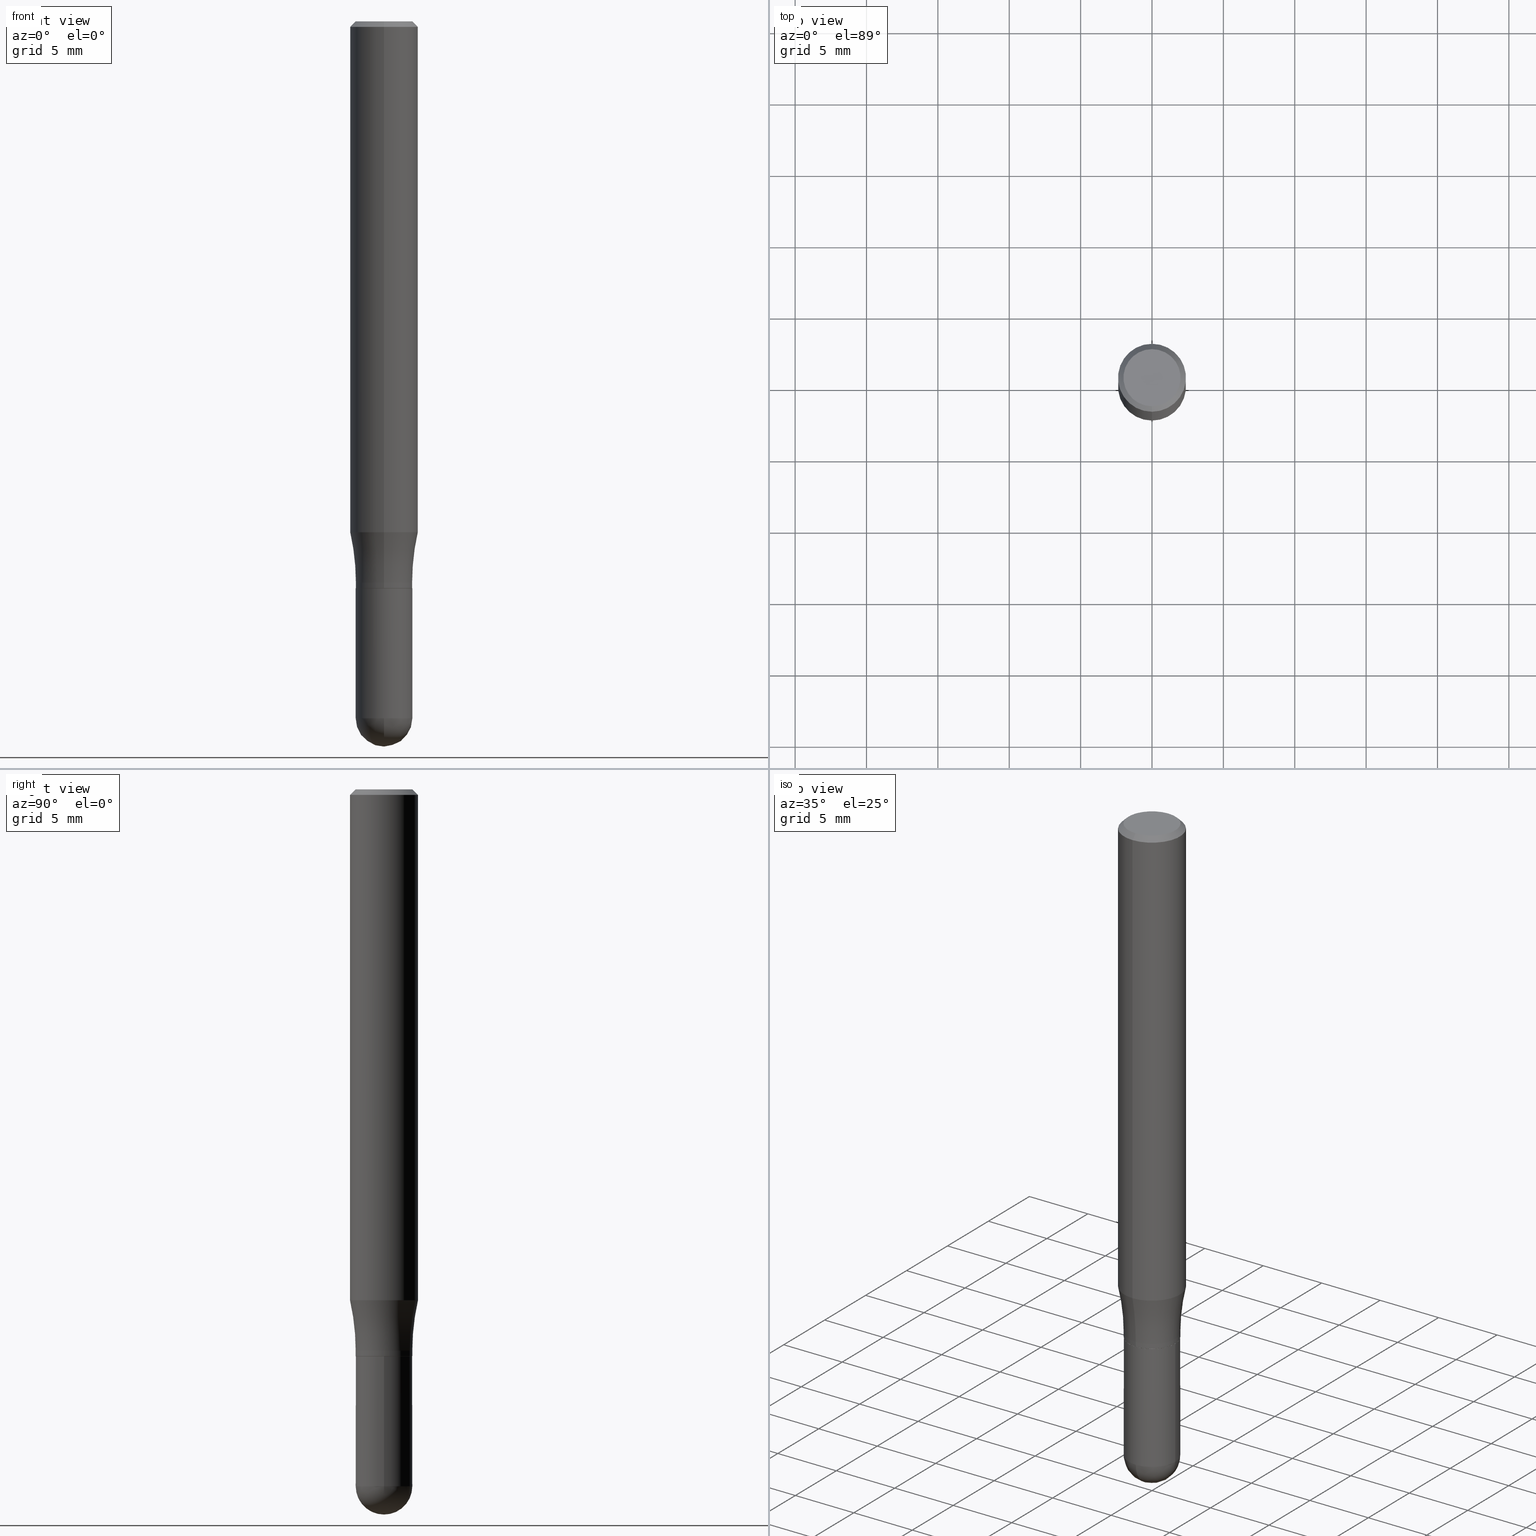
[diagram: canonical four-view strip — front | top / right | iso, engineering-drawing reading convention]
A machine part, canonical four-view strip (front | top / right | iso — engineering-drawing reading convention). The complete STEP part file that produces these views, byte-faithful:
ISO-10303-21;
HEADER;
FILE_DESCRIPTION (( 'STEP AP203' ),
    '1' );
FILE_NAME ('36357.STEP',
    '2024-03-01T12:58:52',
    ( '' ),
    ( '' ),
    'SwSTEP 2.0',
    'SolidWorks 2023',
    '' );
FILE_SCHEMA (( 'CONFIG_CONTROL_DESIGN' ));
ENDSEC;

DATA;
#1 = ORIENTED_EDGE ( 'NONE', *, *, #479, .T. ) ;
#2 = CARTESIAN_POINT ( 'NONE',  ( 4.607751020970784542E-29, -6.842307156538717635E-15, -1.921900000000000164 ) ) ;
#3 = ADVANCED_FACE ( 'NONE', ( #472 ), #434, .T. ) ;
#4 = DIRECTION ( 'NONE',  ( -6.982962677686265133E-15, -1.000000000000000000, 3.520422672247767279E-15 ) ) ;
#5 = PERSON_AND_ORGANIZATION ( #169, #491 ) ;
#6 = FACE_OUTER_BOUND ( 'NONE', #437, .T. ) ;
#7 = CC_DESIGN_PERSON_AND_ORGANIZATION_ASSIGNMENT ( #474, #201, ( #209 ) ) ;
#8 = AXIS2_PLACEMENT_3D ( 'NONE', #226, #345, #483 ) ;
#9 = SPHERICAL_SURFACE ( 'NONE', #490, 0.07809999999999985010 ) ;
#10 = UNCERTAINTY_MEASURE_WITH_UNIT (LENGTH_MEASURE( 1.000000000000000082E-05 ), #293, 'distance_accuracy_value', 'NONE');
#11 = DIRECTION ( 'NONE',  ( -2.448354798421115077E-29, 3.487348433700747315E-15, 1.000000000000000000 ) ) ;
#12 = DIRECTION ( 'NONE',  ( -6.982962677686265922E-15, -1.000000000000000000, 3.487348433700747709E-15 ) ) ;
#13 = FACE_OUTER_BOUND ( 'NONE', #123, .T. ) ;
#14 = AXIS2_PLACEMENT_3D ( 'NONE', #425, #465, #112 ) ;
#15 = CIRCLE ( 'NONE', #342, 0.09374999999999998612 ) ;
#16 = ORIENTED_EDGE ( 'NONE', *, *, #216, .F. ) ;
#17 = LINE ( 'NONE', #457, #486 ) ;
#18 = EDGE_CURVE ( 'NONE', #229, #163, #377, .T. ) ;
#19 = DIRECTION ( 'NONE',  ( 2.448354798421115077E-29, -3.487348433700746920E-15, -1.000000000000000000 ) ) ;
#20 = PRODUCT ( '36357', '36357', '', ( #317 ) ) ;
#21 = CYLINDRICAL_SURFACE ( 'NONE', #419, 0.09374999999999998612 ) ;
#22 = TOROIDAL_SURFACE ( 'NONE', #75, 0.7030999999999998362, 0.6250000000000000000 ) ;
#23 = VECTOR ( 'NONE', #249, 39.37007874015748143 ) ;
#24 = ADVANCED_FACE ( 'NONE', ( #415 ), #251, .T. ) ;
#25 = DIRECTION ( 'NONE',  ( -2.448354798421115077E-29, 3.487348433700747315E-15, 1.000000000000000000 ) ) ;
#26 = DATE_AND_TIME ( #39, #254 ) ;
#27 = DIRECTION ( 'NONE',  ( 2.448354798421115077E-29, -3.487348433700747315E-15, -1.000000000000000000 ) ) ;
#28 = AXIS2_PLACEMENT_3D ( 'NONE', #218, #375, #496 ) ;
#29 = ORIENTED_EDGE ( 'NONE', *, *, #407, .T. ) ;
#30 = CARTESIAN_POINT ( 'NONE',  ( 5.513811629498749357E-16, 0.07759999999999443732, -1.562999999999999945 ) ) ;
#31 = ADVANCED_FACE ( 'NONE', ( #57 ), #493, .T. ) ;
#32 = DIRECTION ( 'NONE',  ( -1.000000000000000000, 6.982962677686265922E-15, -4.883557194083112340E-29 ) ) ;
#33 = EDGE_LOOP ( 'NONE', ( #354, #427, #29, #337, #271 ) ) ;
#34 = CC_DESIGN_DATE_AND_TIME_ASSIGNMENT ( #26, #84, ( #209 ) ) ;
#35 = CALENDAR_DATE ( 2024, 1, 3 ) ;
#36 = CLOSED_SHELL ( 'NONE', ( #424, #148, #116, #24, #228, #72, #381, #340, #155, #462, #178, #310 ) ) ;
#37 = CARTESIAN_POINT ( 'NONE',  ( 3.826778549932201586E-29, -5.450725601874267372E-15, -1.562999999999999723 ) ) ;
#38 = DIRECTION ( 'NONE',  ( -6.982962677686265922E-15, -1.000000000000000000, 3.497884755011870665E-15 ) ) ;
#39 = CALENDAR_DATE ( 2024, 1, 3 ) ;
#40 = CARTESIAN_POINT ( 'NONE',  ( 3.672532197631722186E-31, -5.231022650551191994E-17, -0.01500000000000020241 ) ) ;
#41 = CIRCLE ( 'NONE', #327, 0.07809999999999987785 ) ;
#42 = LOCAL_TIME ( 7, 58, 52.00000000000000000, #443 ) ;
#43 = CARTESIAN_POINT ( 'NONE',  ( 4.995825975129299531E-15, 0.7030999999999942851, -1.548000000000002485 ) ) ;
#44 = CALENDAR_DATE ( 2024, 1, 3 ) ;
#45 = CARTESIAN_POINT ( 'NONE',  ( 3.672532197631722186E-31, -5.231022650551191994E-17, -0.01500000000000020241 ) ) ;
#46 = PERSON_AND_ORGANIZATION ( #169, #491 ) ;
#47 = DIRECTION ( 'NONE',  ( -2.448354798421115077E-29, 3.487348433700747315E-15, 1.000000000000000000 ) ) ;
#48 = AXIS2_PLACEMENT_3D ( 'NONE', #343, #79, #505 ) ;
#49 = LINE ( 'NONE', #243, #212 ) ;
#50 = ORIENTED_EDGE ( 'NONE', *, *, #508, .F. ) ;
#51 = CC_DESIGN_APPROVAL ( #464, ( #335 ) ) ;
#52 = EDGE_CURVE ( 'NONE', #510, #242, #351, .T. ) ;
#53 = DIRECTION ( 'NONE',  ( -2.448354798421115077E-29, 3.487348433700747315E-15, 1.000000000000000000 ) ) ;
#54 = ORIENTED_EDGE ( 'NONE', *, *, #364, .T. ) ;
#55 = DIMENSIONAL_EXPONENTS ( 1.000000000000000000, 0.000000000000000000, 0.000000000000000000, 0.000000000000000000, 0.000000000000000000, 0.000000000000000000, 0.000000000000000000 ) ;
#56 = CC_DESIGN_PERSON_AND_ORGANIZATION_ASSIGNMENT ( #113, #127, ( #335 ) ) ;
#57 = FACE_OUTER_BOUND ( 'NONE', #210, .T. ) ;
#58 =( NAMED_UNIT ( * ) PLANE_ANGLE_UNIT ( ) SI_UNIT ( $, .RADIAN. ) );
#59 = LINE ( 'NONE', #179, #23 ) ;
#60 = ORIENTED_EDGE ( 'NONE', *, *, #18, .F. ) ;
#61 = CIRCLE ( 'NONE', #220, 0.07809999999999991949 ) ;
#62 = CARTESIAN_POINT ( 'NONE',  ( 3.790053227955885371E-29, -5.398415375368757676E-15, -1.548000000000000043 ) ) ;
#63 = ORIENTED_EDGE ( 'NONE', *, *, #52, .T. ) ;
#64 = DIRECTION ( 'NONE',  ( 7.105427357600999492E-15, 1.000000000000000000, 0.000000000000000000 ) ) ;
#65 = DIRECTION ( 'NONE',  ( -2.448354798421115077E-29, 3.487348433700747315E-15, 1.000000000000000000 ) ) ;
#66 = AXIS2_PLACEMENT_3D ( 'NONE', #2, #171, #324 ) ;
#67 = LINE ( 'NONE', #260, #308 ) ;
#68 = PERSON_AND_ORGANIZATION_ROLE ( 'creator' ) ;
#69 = ORIENTED_EDGE ( 'NONE', *, *, #414, .T. ) ;
#70 = ORIENTED_EDGE ( 'NONE', *, *, #130, .T. ) ;
#71 = CARTESIAN_POINT ( 'NONE',  ( 5.453693851273347101E-16, 0.07809999999999441000, -1.562999999999999945 ) ) ;
#72 = ADVANCED_FACE ( 'NONE', ( #13 ), #22, .F. ) ;
#73 = CARTESIAN_POINT ( 'NONE',  ( 4.699946498607214373E-29, -6.710277985122641264E-15, -1.921900000000000164 ) ) ;
#74 = VERTEX_POINT ( 'NONE', #173 ) ;
#75 = AXIS2_PLACEMENT_3D ( 'NONE', #416, #217, #379 ) ;
#76 = ORIENTED_EDGE ( 'NONE', *, *, #467, .T. ) ;
#77 = APPROVAL_ROLE ( '' ) ;
#78 = VERTEX_POINT ( 'NONE', #110 ) ;
#79 = DIRECTION ( 'NONE',  ( -2.445468806185136597E-29, 3.491481338843145583E-15, 1.000000000000000000 ) ) ;
#80 = EDGE_CURVE ( 'NONE', #133, #242, #225, .T. ) ;
#81 = COORDINATED_UNIVERSAL_TIME_OFFSET ( 5, 0, .BEHIND. ) ;
#82 = CARTESIAN_POINT ( 'NONE',  ( 4.968921432832621187E-45, -7.077552806948386827E-31, -2.029494024328891706E-16 ) ) ;
#83 = ORIENTED_EDGE ( 'NONE', *, *, #372, .F. ) ;
#84 = DATE_TIME_ROLE ( 'creation_date' ) ;
#85 = ORIENTED_EDGE ( 'NONE', *, *, #448, .T. ) ;
#86 = AXIS2_PLACEMENT_3D ( 'NONE', #102, #208, #420 ) ;
#87 = AXIS2_PLACEMENT_3D ( 'NONE', #270, #91, #501 ) ;
#88 = CARTESIAN_POINT ( 'NONE',  ( 3.822267744067367613E-29, -5.457185332611835515E-15, -1.562999999999999723 ) ) ;
#89 = CYLINDRICAL_SURFACE ( 'NONE', #48, 0.07809999999999989173 ) ;
#90 = DIRECTION ( 'NONE',  ( -1.000000000000000000, 6.982962677686265922E-15, -4.876176775795935793E-29 ) ) ;
#91 = DIRECTION ( 'NONE',  ( 0.000000000000000000, 0.000000000000000000, 1.000000000000000000 ) ) ;
#92 = CARTESIAN_POINT ( 'NONE',  ( 0.000000000000000000, 0.000000000000000000, 0.000000000000000000 ) ) ;
#93 = DIRECTION ( 'NONE',  ( 1.000000000000000000, -6.982962677686261189E-15, 0.000000000000000000 ) ) ;
#94 = EDGE_CURVE ( 'NONE', #99, #160, #67, .T. ) ;
#95 = EDGE_LOOP ( 'NONE', ( #438, #312 ) ) ;
#96 = AXIS2_PLACEMENT_3D ( 'NONE', #485, #449, #451 ) ;
#97 = CARTESIAN_POINT ( 'NONE',  ( -5.418779037884150848E-16, -0.07760000000000531750, -1.562999999999999501 ) ) ;
#98 = CIRCLE ( 'NONE', #301, 0.07759999999999987741 ) ;
#99 = VERTEX_POINT ( 'NONE', #428 ) ;
#100 = FACE_OUTER_BOUND ( 'NONE', #224, .T. ) ;
#101 = EDGE_CURVE ( 'NONE', #506, #99, #126, .T. ) ;
#102 = CARTESIAN_POINT ( 'NONE',  ( 0.000000000000000000, 0.000000000000000000, 0.000000000000000000 ) ) ;
#103 = CYLINDRICAL_SURFACE ( 'NONE', #28, 0.07809999999999978071 ) ;
#104 = ORIENTED_EDGE ( 'NONE', *, *, #508, .T. ) ;
#105 = DIRECTION ( 'NONE',  ( -4.937700262164631661E-15, -0.7071067811865571207, 0.7071067811865379138 ) ) ;
#106 = FACE_OUTER_BOUND ( 'NONE', #492, .T. ) ;
#107 = CIRCLE ( 'NONE', #286, 0.07809999999999991949 ) ;
#108 = AXIS2_PLACEMENT_3D ( 'NONE', #62, #426, #417 ) ;
#109 = CARTESIAN_POINT ( 'NONE',  ( -0.07809999999999991949, -5.528797782238600914E-15, -1.921900000000000164 ) ) ;
#110 = CARTESIAN_POINT ( 'NONE',  ( -0.07809999999999987785, -5.528797782238600914E-15, -1.562999999999999723 ) ) ;
#111 =( LENGTH_UNIT ( ) NAMED_UNIT ( * ) SI_UNIT ( $, .METRE. ) );
#112 = DIRECTION ( 'NONE',  ( 6.982962677686265133E-15, 1.000000000000000000, 0.000000000000000000 ) ) ;
#113 = PERSON_AND_ORGANIZATION ( #169, #491 ) ;
#114 = CIRCLE ( 'NONE', #268, 0.07759999999999987741 ) ;
#115 = AXIS2_PLACEMENT_3D ( 'NONE', #288, #25, #183 ) ;
#116 = ADVANCED_FACE ( 'NONE', ( #152 ), #262, .T. ) ;
#117 = ORIENTED_EDGE ( 'NONE', *, *, #495, .T. ) ;
#118 = LINE ( 'NONE', #265, #219 ) ;
#119 = PLANE ( 'NONE',  #513 ) ;
#120 = AXIS2_PLACEMENT_3D ( 'NONE', #40, #369, #266 ) ;
#121 = CIRCLE ( 'NONE', #352, 0.07874999999999997280 ) ;
#122 = ORIENTED_EDGE ( 'NONE', *, *, #386, .T. ) ;
#123 = EDGE_LOOP ( 'NONE', ( #83, #168, #70, #348 ) ) ;
#124 = EDGE_CURVE ( 'NONE', #242, #476, #107, .T. ) ;
#125 = EDGE_LOOP ( 'NONE', ( #326, #194, #440, #60 ) ) ;
#126 = LINE ( 'NONE', #30, #300 ) ;
#127 = PERSON_AND_ORGANIZATION_ROLE ( 'classification_officer' ) ;
#128 = CONICAL_SURFACE ( 'NONE', #456, 0.07759999999999987741, 0.7853981633974653764 ) ;
#129 = CYLINDRICAL_SURFACE ( 'NONE', #445, 0.09374999999999998612 ) ;
#130 = EDGE_CURVE ( 'NONE', #250, #454, #455, .T. ) ;
#131 = CARTESIAN_POINT ( 'NONE',  ( 3.449762054376117352E-29, -4.913716878259238262E-15, -1.409012311696322017 ) ) ;
#132 = CARTESIAN_POINT ( 'NONE',  ( 4.699946498607214373E-29, -6.710277985122641264E-15, -1.921900000000000164 ) ) ;
#133 = VERTEX_POINT ( 'NONE', #314 ) ;
#134 = CIRCLE ( 'NONE', #429, 0.09374999999999998612 ) ;
#135 = DIRECTION ( 'NONE',  ( -2.448354798421115077E-29, 3.487348433700747315E-15, 1.000000000000000000 ) ) ;
#136 = VECTOR ( 'NONE', #399, 39.37007874015748143 ) ;
#137 = CARTESIAN_POINT ( 'NONE',  ( 3.825554372532991344E-29, -5.448981927657417680E-15, -1.562499999999999778 ) ) ;
#138 = ORIENTED_EDGE ( 'NONE', *, *, #257, .F. ) ;
#139 = EDGE_CURVE ( 'NONE', #163, #454, #156, .T. ) ;
#140 = CARTESIAN_POINT ( 'NONE',  ( 5.531575197892748919E-16, 0.07759999999999443732, -1.562999999999999945 ) ) ;
#141 = DIRECTION ( 'NONE',  ( -2.448354798421115077E-29, 3.487348433700747315E-15, 1.000000000000000000 ) ) ;
#142 = ADVANCED_FACE ( 'NONE', ( #446 ), #89, .T. ) ;
#143 = CALENDAR_DATE ( 2024, 1, 3 ) ;
#144 = EDGE_CURVE ( 'NONE', #454, #160, #373, .T. ) ;
#145 = DATE_TIME_ROLE ( 'classification_date' ) ;
#146 = CONICAL_SURFACE ( 'NONE', #120, 0.09374999999999998612, 0.7853981633974485010 ) ;
#147 = APPROVAL_PERSON_ORGANIZATION ( #157, #514, #77 ) ;
#148 = ADVANCED_FACE ( 'NONE', ( #191 ), #382, .T. ) ;
#149 = ORIENTED_EDGE ( 'NONE', *, *, #495, .F. ) ;
#150 = ORIENTED_EDGE ( 'NONE', *, *, #316, .T. ) ;
#151 = ORIENTED_EDGE ( 'NONE', *, *, #101, .F. ) ;
#152 = FACE_OUTER_BOUND ( 'NONE', #125, .T. ) ;
#153 = CIRCLE ( 'NONE', #181, 0.6250000000000001110 ) ;
#154 = SHAPE_DEFINITION_REPRESENTATION ( #295, #281 ) ;
#155 = ADVANCED_FACE ( 'NONE', ( #259 ), #507, .F. ) ;
#156 = LINE ( 'NONE', #272, #363 ) ;
#157 = PERSON_AND_ORGANIZATION ( #169, #491 ) ;
#158 = DIRECTION ( 'NONE',  ( -1.000000000000000000, 6.982962677686265922E-15, -4.883557194083112340E-29 ) ) ;
#159 = DIRECTION ( 'NONE',  ( -2.445468806185136597E-29, 3.491481338843145583E-15, 1.000000000000000000 ) ) ;
#160 = VERTEX_POINT ( 'NONE', #393 ) ;
#161 = ORIENTED_EDGE ( 'NONE', *, *, #323, .F. ) ;
#162 = DIRECTION ( 'NONE',  ( -6.982962677686266711E-15, -1.000000000000000000, 3.483106191921935949E-15 ) ) ;
#163 = VERTEX_POINT ( 'NONE', #305 ) ;
#164 = EDGE_CURVE ( 'NONE', #510, #199, #118, .T. ) ;
#165 = AXIS2_PLACEMENT_3D ( 'NONE', #277, #480, #4 ) ;
#166 = LOCAL_TIME ( 7, 58, 52.00000000000000000, #81 ) ;
#167 = CARTESIAN_POINT ( 'NONE',  ( 4.607751020970784542E-29, -6.842307156538717635E-15, -1.921900000000000164 ) ) ;
#168 = ORIENTED_EDGE ( 'NONE', *, *, #316, .F. ) ;
#169 = PERSON ( 'UNSPECIFIED', 'UNSPECIFIED', 'UNSPECIFIED', ('UNSPECIFIED'), ('UNSPECIFIED'), ('UNSPECIFIED') ) ;
#170 = ADVANCED_FACE ( 'NONE', ( #432 ), #119, .F. ) ;
#171 = DIRECTION ( 'NONE',  ( -1.000000000000000000, 7.105427357601001070E-15, -4.926315508542082329E-29 ) ) ;
#172 = CARTESIAN_POINT ( 'NONE',  ( 6.546527510330877999E-16, 0.09374999999999994449, -0.01500000000000052854 ) ) ;
#173 = CARTESIAN_POINT ( 'NONE',  ( 6.661338147751289300E-16, 0.09374999999999510114, -1.409012311696322239 ) ) ;
#174 = AXIS2_PLACEMENT_3D ( 'NONE', #276, #482, #202 ) ;
#175 = DIRECTION ( 'NONE',  ( -2.448354798421115077E-29, 3.487348433700747315E-15, 1.000000000000000000 ) ) ;
#176 = DIRECTION ( 'NONE',  ( 4.937700262164548831E-15, 0.7071067811865452413, -0.7071067811865497932 ) ) ;
#177 = CARTESIAN_POINT ( 'NONE',  ( 3.672532197631722186E-31, -5.231022650551191994E-17, -0.01500000000000020241 ) ) ;
#178 = ADVANCED_FACE ( 'NONE', ( #346 ), #146, .T. ) ;
#179 = CARTESIAN_POINT ( 'NONE',  ( -6.546527510330874055E-16, -0.09374999999999998612, 3.269389156594450115E-16 ) ) ;
#180 = AXIS2_PLACEMENT_3D ( 'NONE', #132, #362, #93 ) ;
#181 = AXIS2_PLACEMENT_3D ( 'NONE', #43, #195, #64 ) ;
#182 = DIRECTION ( 'NONE',  ( 6.982962677686265922E-15, 1.000000000000000000, -3.497884755011867510E-15 ) ) ;
#183 = DIRECTION ( 'NONE',  ( -6.982962677686265922E-15, -1.000000000000000000, 3.487348433700747709E-15 ) ) ;
#184 = APPROVAL_STATUS ( 'not_yet_approved' ) ;
#185 = EDGE_CURVE ( 'NONE', #229, #506, #114, .T. ) ;
#186 =( GEOMETRIC_REPRESENTATION_CONTEXT ( 3 ) GLOBAL_UNCERTAINTY_ASSIGNED_CONTEXT ( ( #10 ) ) GLOBAL_UNIT_ASSIGNED_CONTEXT ( ( #293, #58, #256 ) ) REPRESENTATION_CONTEXT ( 'NONE', 'WORKASPACE' ) );
#187 = ORIENTED_EDGE ( 'NONE', *, *, #185, .F. ) ;
#188 = DIRECTION ( 'NONE',  ( 2.438088387897960049E-29, -3.491481338843145188E-15, -1.000000000000000000 ) ) ;
#189 = ORIENTED_EDGE ( 'NONE', *, *, #124, .F. ) ;
#190 = DATE_AND_TIME ( #35, #306 ) ;
#191 = FACE_OUTER_BOUND ( 'NONE', #356, .T. ) ;
#192 = ORIENTED_EDGE ( 'NONE', *, *, #200, .F. ) ;
#193 = AXIS2_PLACEMENT_3D ( 'NONE', #489, #488, #487 ) ;
#194 = ORIENTED_EDGE ( 'NONE', *, *, #101, .T. ) ;
#195 = DIRECTION ( 'NONE',  ( 1.000000000000000000, -7.105427357601001070E-15, 4.926264895051544158E-29 ) ) ;
#196 = ORIENTED_EDGE ( 'NONE', *, *, #80, .T. ) ;
#197 = APPROVAL_STATUS ( 'not_yet_approved' ) ;
#198 = VERTEX_POINT ( 'NONE', #453 ) ;
#199 = VERTEX_POINT ( 'NONE', #406 ) ;
#200 = EDGE_CURVE ( 'NONE', #199, #78, #319, .T. ) ;
#201 = PERSON_AND_ORGANIZATION_ROLE ( 'creator' ) ;
#202 = DIRECTION ( 'NONE',  ( 1.000000000000000000, -6.982962677686265133E-15, 0.000000000000000000 ) ) ;
#203 = AXIS2_PLACEMENT_3D ( 'NONE', #230, #397, #38 ) ;
#204 = APPLICATION_CONTEXT ( 'configuration controlled 3d designs of mechanical parts and assemblies' ) ;
#205 = CARTESIAN_POINT ( 'NONE',  ( 3.826778549932201586E-29, -5.450725601874267372E-15, -1.562999999999999723 ) ) ;
#206 = ORIENTED_EDGE ( 'NONE', *, *, #407, .F. ) ;
#207 = CARTESIAN_POINT ( 'NONE',  ( -6.431716872910805909E-16, -0.09375000000000004163, -0.01499999999999987628 ) ) ;
#208 = DIRECTION ( 'NONE',  ( -2.445468806185136597E-29, 3.491481338843145583E-15, 1.000000000000000000 ) ) ;
#209 = PRODUCT_DEFINITION ( 'UNKNOWN', '', #374, #433 ) ;
#210 = EDGE_LOOP ( 'NONE', ( #442, #85, #192, #322, #63 ) ) ;
#211 = CARTESIAN_POINT ( 'NONE',  ( 6.546527510330877999E-16, 0.09374999999999994449, -0.01500000000000052854 ) ) ;
#212 = VECTOR ( 'NONE', #408, 39.37007874015748143 ) ;
#213 = ORIENTED_EDGE ( 'NONE', *, *, #94, .T. ) ;
#214 = CARTESIAN_POINT ( 'NONE',  ( 6.022805309504405235E-16, 0.07874999999999997280, -4.775780915868230078E-16 ) ) ;
#215 = ORIENTED_EDGE ( 'NONE', *, *, #255, .F. ) ;
#216 = EDGE_CURVE ( 'NONE', #133, #198, #460, .T. ) ;
#217 = DIRECTION ( 'NONE',  ( -2.448354798421115077E-29, 3.487348433700747315E-15, 1.000000000000000000 ) ) ;
#218 = CARTESIAN_POINT ( 'NONE',  ( 0.000000000000000000, 0.000000000000000000, 0.000000000000000000 ) ) ;
#219 = VECTOR ( 'NONE', #473, 39.37007874015748143 ) ;
#220 = AXIS2_PLACEMENT_3D ( 'NONE', #330, #499, #258 ) ;
#221 = DIRECTION ( 'NONE',  ( -2.448354798421115077E-29, 3.487348433700746920E-15, 1.000000000000000000 ) ) ;
#222 = COORDINATED_UNIVERSAL_TIME_OFFSET ( 5, 0, .BEHIND. ) ;
#223 = EDGE_LOOP ( 'NONE', ( #187, #50 ) ) ;
#224 = EDGE_LOOP ( 'NONE', ( #233, #69, #344, #392 ) ) ;
#225 = CIRCLE ( 'NONE', #14, 0.07809999999999985010 ) ;
#226 = CARTESIAN_POINT ( 'NONE',  ( -4.909721058681173899E-15, -0.7031000000000052763, -1.547999999999997600 ) ) ;
#227 = CARTESIAN_POINT ( 'NONE',  ( 4.607751020970784542E-29, -6.842307156538717635E-15, -1.921900000000000164 ) ) ;
#228 = ADVANCED_FACE ( 'NONE', ( #366 ), #388, .F. ) ;
#229 = VERTEX_POINT ( 'NONE', #97 ) ;
#230 = CARTESIAN_POINT ( 'NONE',  ( 3.790053227955885371E-29, -5.398415375368757676E-15, -1.548000000000000043 ) ) ;
#231 = APPROVAL_PERSON_ORGANIZATION ( #355, #464, #339 ) ;
#232 = CARTESIAN_POINT ( 'NONE',  ( 6.661338147750937270E-16, 0.09374999999999998612, -3.269389156594450115E-16 ) ) ;
#233 = ORIENTED_EDGE ( 'NONE', *, *, #94, .F. ) ;
#234 = VERTEX_POINT ( 'NONE', #207 ) ;
#235 = CIRCLE ( 'NONE', #278, 0.09374999999999998612 ) ;
#236 = DATE_AND_TIME ( #307, #42 ) ;
#237 = EDGE_CURVE ( 'NONE', #476, #198, #409, .T. ) ;
#238 = DIRECTION ( 'NONE',  ( -2.445468806185136597E-29, 3.491481338843145583E-15, 1.000000000000000000 ) ) ;
#239 = APPLICATION_PROTOCOL_DEFINITION ( 'international standard', 'config_control_design', 1994, #367 ) ;
#240 = APPROVAL ( #197, 'UNSPECIFIED' ) ;
#241 = DIRECTION ( 'NONE',  ( -6.982962677686265133E-15, -1.000000000000000000, 3.520422672247767279E-15 ) ) ;
#242 = VERTEX_POINT ( 'NONE', #404 ) ;
#243 = CARTESIAN_POINT ( 'NONE',  ( -6.431716872910805909E-16, -0.09375000000000004163, -0.01499999999999987628 ) ) ;
#244 = EDGE_LOOP ( 'NONE', ( #304, #213, #274, #431 ) ) ;
#245 = AXIS2_PLACEMENT_3D ( 'NONE', #370, #294, #422 ) ;
#246 = AXIS2_PLACEMENT_3D ( 'NONE', #137, #458, #383 ) ;
#247 = DIRECTION ( 'NONE',  ( -2.448354798421115077E-29, 3.487348433700747315E-15, 1.000000000000000000 ) ) ;
#248 = CARTESIAN_POINT ( 'NONE',  ( -5.418779037884150848E-16, -0.07760000000000531750, -1.562999999999999501 ) ) ;
#249 = DIRECTION ( 'NONE',  ( -2.448354798421115077E-29, 3.487348433700746920E-15, 1.000000000000000000 ) ) ;
#250 = VERTEX_POINT ( 'NONE', #444 ) ;
#251 = CYLINDRICAL_SURFACE ( 'NONE', #384, 0.07809999999999978071 ) ;
#252 = CARTESIAN_POINT ( 'NONE',  ( 0.000000000000000000, 0.000000000000000000, 0.000000000000000000 ) ) ;
#253 = CARTESIAN_POINT ( 'NONE',  ( 0.000000000000000000, 0.000000000000000000, 0.000000000000000000 ) ) ;
#254 = LOCAL_TIME ( 7, 58, 52.00000000000000000, #222 ) ;
#255 = EDGE_CURVE ( 'NONE', #74, #250, #477, .T. ) ;
#256 =( NAMED_UNIT ( * ) SI_UNIT ( $, .STERADIAN. ) SOLID_ANGLE_UNIT ( ) );
#257 = EDGE_CURVE ( 'NONE', #234, #358, #134, .T. ) ;
#258 = DIRECTION ( 'NONE',  ( 1.000000000000000000, -6.982962677686261189E-15, 0.000000000000000000 ) ) ;
#259 = FACE_OUTER_BOUND ( 'NONE', #223, .T. ) ;
#260 = CARTESIAN_POINT ( 'NONE',  ( 5.549338766286364898E-16, 0.07809999999999978071, -2.723619126720275908E-16 ) ) ;
#261 = COORDINATED_UNIVERSAL_TIME_OFFSET ( 5, 0, .BEHIND. ) ;
#262 = CONICAL_SURFACE ( 'NONE', #165, 0.07759999999999987741, 0.7853981633974653764 ) ;
#263 = PRODUCT_RELATED_PRODUCT_CATEGORY ( 'detail', '', ( #20 ) ) ;
#264 = ORIENTED_EDGE ( 'NONE', *, *, #237, .F. ) ;
#265 = CARTESIAN_POINT ( 'NONE',  ( 0.07809999999999989173, -5.453693851272967462E-16, 3.808294061896620798E-30 ) ) ;
#266 = DIRECTION ( 'NONE',  ( 6.982962677686266711E-15, 1.000000000000000000, -3.483106191921935949E-15 ) ) ;
#267 = DIRECTION ( 'NONE',  ( -2.448354798421115077E-29, 3.487348433700746920E-15, 1.000000000000000000 ) ) ;
#268 = AXIS2_PLACEMENT_3D ( 'NONE', #37, #47, #241 ) ;
#269 = EDGE_LOOP ( 'NONE', ( #215, #285, #390, #452 ) ) ;
#270 = CARTESIAN_POINT ( 'NONE',  ( 0.000000000000000000, 0.000000000000000000, 0.000000000000000000 ) ) ;
#271 = ORIENTED_EDGE ( 'NONE', *, *, #284, .F. ) ;
#272 = CARTESIAN_POINT ( 'NONE',  ( -5.453693851272958587E-16, -0.07809999999999978071, 2.723619126720275908E-16 ) ) ;
#273 = DATE_AND_TIME ( #44, #411 ) ;
#274 = ORIENTED_EDGE ( 'NONE', *, *, #144, .F. ) ;
#275 = ADVANCED_FACE ( 'NONE', ( #318 ), #9, .T. ) ;
#276 = CARTESIAN_POINT ( 'NONE',  ( 3.822267744067367613E-29, -5.457185332611835515E-15, -1.562999999999999723 ) ) ;
#277 = CARTESIAN_POINT ( 'NONE',  ( 3.826778549932201586E-29, -5.450725601874267372E-15, -1.562999999999999723 ) ) ;
#278 = AXIS2_PLACEMENT_3D ( 'NONE', #177, #175, #500 ) ;
#279 = APPROVAL_ROLE ( '' ) ;
#280 = DIRECTION ( 'NONE',  ( -6.982962677686265922E-15, -1.000000000000000000, 3.497884755011869876E-15 ) ) ;
#281 = ADVANCED_BREP_SHAPE_REPRESENTATION ( '36357', ( #470, #298, #87 ), #186 ) ;
#282 = DIRECTION ( 'NONE',  ( -6.982962677686266711E-15, -1.000000000000000000, 2.913971193241881161E-15 ) ) ;
#283 = DIRECTION ( 'NONE',  ( -6.982962677686265133E-15, -1.000000000000000000, 3.520422672247767279E-15 ) ) ;
#284 = EDGE_CURVE ( 'NONE', #78, #199, #41, .T. ) ;
#285 = ORIENTED_EDGE ( 'NONE', *, *, #372, .T. ) ;
#286 = AXIS2_PLACEMENT_3D ( 'NONE', #73, #159, #311 ) ;
#287 = AXIS2_PLACEMENT_3D ( 'NONE', #423, #19, #289 ) ;
#288 = CARTESIAN_POINT ( 'NONE',  ( 4.968921432832621187E-45, -7.077552806948386827E-31, -2.029494024328891706E-16 ) ) ;
#289 = DIRECTION ( 'NONE',  ( 6.982962677686265922E-15, 1.000000000000000000, -3.487348433700746920E-15 ) ) ;
#290 = ORIENTED_EDGE ( 'NONE', *, *, #414, .F. ) ;
#291 = EDGE_LOOP ( 'NONE', ( #161, #365, #1, #117 ) ) ;
#292 = EDGE_CURVE ( 'NONE', #163, #99, #400, .T. ) ;
#293 =( CONVERSION_BASED_UNIT ( 'INCH', #329 ) LENGTH_UNIT ( ) NAMED_UNIT ( #55 ) );
#294 = DIRECTION ( 'NONE',  ( -2.445468806185136597E-29, 3.491481338843145583E-15, 1.000000000000000000 ) ) ;
#295 = PRODUCT_DEFINITION_SHAPE ( 'NONE', 'NONE',  #209 ) ;
#296 = CARTESIAN_POINT ( 'NONE',  ( -5.917179523077941910E-16, -0.07874999999999997280, 7.167928672104461734E-17 ) ) ;
#297 = APPROVAL_DATE_TIME ( #511, #514 ) ;
#298 = MANIFOLD_SOLID_BREP ( 'Body-Move/Copy2[2]', #36 ) ;
#299 = CC_DESIGN_PERSON_AND_ORGANIZATION_ASSIGNMENT ( #46, #484, ( #20 ) ) ;
#300 = VECTOR ( 'NONE', #303, 39.37007874015748143 ) ;
#301 = AXIS2_PLACEMENT_3D ( 'NONE', #371, #65, #336 ) ;
#302 = CC_DESIGN_SECURITY_CLASSIFICATION ( #335, ( #374 ) ) ;
#303 = DIRECTION ( 'NONE',  ( 5.024295867788147587E-15, 0.7071067811865620056, 0.7071067811865330288 ) ) ;
#304 = ORIENTED_EDGE ( 'NONE', *, *, #292, .T. ) ;
#305 = CARTESIAN_POINT ( 'NONE',  ( -5.453693851272576975E-16, -0.07810000000000523468, -1.562499999999999556 ) ) ;
#306 = LOCAL_TIME ( 7, 58, 52.00000000000000000, #396 ) ;
#307 = CALENDAR_DATE ( 2024, 1, 3 ) ;
#308 = VECTOR ( 'NONE', #221, 39.37007874015748143 ) ;
#309 = VECTOR ( 'NONE', #176, 39.37007874015748143 ) ;
#310 = ADVANCED_FACE ( 'NONE', ( #6 ), #129, .T. ) ;
#311 = DIRECTION ( 'NONE',  ( 1.000000000000000000, -6.982962677686261189E-15, 0.000000000000000000 ) ) ;
#312 = ORIENTED_EDGE ( 'NONE', *, *, #284, .T. ) ;
#313 = DIRECTION ( 'NONE',  ( 6.982962677686265922E-15, 1.000000000000000000, -3.497884755011867510E-15 ) ) ;
#314 = CARTESIAN_POINT ( 'NONE',  ( 4.802081559093088289E-29, -7.110209603351695741E-15, -2.000000000000000000 ) ) ;
#315 = CLOSED_SHELL ( 'NONE', ( #31, #275, #170, #3, #142 ) ) ;
#316 = EDGE_CURVE ( 'NONE', #250, #74, #15, .T. ) ;
#317 = MECHANICAL_CONTEXT ( 'NONE', #204, 'mechanical' ) ;
#318 = FACE_OUTER_BOUND ( 'NONE', #504, .T. ) ;
#319 = CIRCLE ( 'NONE', #174, 0.07809999999999987785 ) ;
#320 = CIRCLE ( 'NONE', #115, 0.07874999999999997280 ) ;
#321 = DIRECTION ( 'NONE',  ( -6.982962677686266711E-15, -1.000000000000000000, 3.487348433700747315E-15 ) ) ;
#322 = ORIENTED_EDGE ( 'NONE', *, *, #164, .F. ) ;
#323 = EDGE_CURVE ( 'NONE', #391, #234, #49, .T. ) ;
#324 = DIRECTION ( 'NONE',  ( -7.105427357600999492E-15, -1.000000000000000000, 0.000000000000000000 ) ) ;
#325 = LINE ( 'NONE', #232, #136 ) ;
#326 = ORIENTED_EDGE ( 'NONE', *, *, #185, .T. ) ;
#327 = AXIS2_PLACEMENT_3D ( 'NONE', #88, #238, #441 ) ;
#328 = CC_DESIGN_APPROVAL ( #240, ( #209 ) ) ;
#329 = LENGTH_MEASURE_WITH_UNIT ( LENGTH_MEASURE( 0.02539999999999999897 ), #111 );
#330 = CARTESIAN_POINT ( 'NONE',  ( 4.699946498607214373E-29, -6.710277985122641264E-15, -1.921900000000000164 ) ) ;
#331 = DIRECTION ( 'NONE',  ( -6.982962677686265922E-15, -1.000000000000000000, 3.487348433700747315E-15 ) ) ;
#332 = AXIS2_PLACEMENT_3D ( 'NONE', #227, #32, #182 ) ;
#333 = CARTESIAN_POINT ( 'NONE',  ( 0.07809999999999991949, -6.629101043994534642E-15, -1.921900000000000164 ) ) ;
#334 = EDGE_LOOP ( 'NONE', ( #16, #196, #359, #206 ) ) ;
#335 = SECURITY_CLASSIFICATION ( '', '', #405 ) ;
#336 = DIRECTION ( 'NONE',  ( -6.982962677686265133E-15, -1.000000000000000000, 3.520422672247767279E-15 ) ) ;
#337 = ORIENTED_EDGE ( 'NONE', *, *, #164, .T. ) ;
#338 = DIRECTION ( 'NONE',  ( -6.982962677686266711E-15, -1.000000000000000000, 3.487348433700747315E-15 ) ) ;
#339 = APPROVAL_ROLE ( '' ) ;
#340 = ADVANCED_FACE ( 'NONE', ( #357 ), #128, .T. ) ;
#341 = CARTESIAN_POINT ( 'NONE',  ( 3.826778549932201586E-29, -5.450725601874267372E-15, -1.562999999999999723 ) ) ;
#342 = AXIS2_PLACEMENT_3D ( 'NONE', #131, #11, #282 ) ;
#343 = CARTESIAN_POINT ( 'NONE',  ( 0.000000000000000000, 0.000000000000000000, 0.000000000000000000 ) ) ;
#344 = ORIENTED_EDGE ( 'NONE', *, *, #139, .T. ) ;
#345 = DIRECTION ( 'NONE',  ( -1.000000000000000000, 6.982962677686265922E-15, -4.883557194083112340E-29 ) ) ;
#346 = FACE_OUTER_BOUND ( 'NONE', #291, .T. ) ;
#347 = ORIENTED_EDGE ( 'NONE', *, *, #350, .T. ) ;
#348 = ORIENTED_EDGE ( 'NONE', *, *, #144, .T. ) ;
#349 = APPROVAL_DATE_TIME ( #190, #464 ) ;
#350 = EDGE_CURVE ( 'NONE', #391, #403, #121, .T. ) ;
#351 = CIRCLE ( 'NONE', #245, 0.07809999999999991949 ) ;
#352 = AXIS2_PLACEMENT_3D ( 'NONE', #82, #368, #12 ) ;
#353 = CARTESIAN_POINT ( 'NONE',  ( 3.672532197631722186E-31, -5.231022650551191994E-17, -0.01500000000000020241 ) ) ;
#354 = ORIENTED_EDGE ( 'NONE', *, *, #448, .F. ) ;
#355 = PERSON_AND_ORGANIZATION ( #169, #491 ) ;
#356 = EDGE_LOOP ( 'NONE', ( #401, #481, #394, #450 ) ) ;
#357 = FACE_OUTER_BOUND ( 'NONE', #413, .T. ) ;
#358 = VERTEX_POINT ( 'NONE', #172 ) ;
#359 = ORIENTED_EDGE ( 'NONE', *, *, #52, .F. ) ;
#360 = CARTESIAN_POINT ( 'NONE',  ( 3.825554372532991344E-29, -5.448981927657417680E-15, -1.562499999999999778 ) ) ;
#361 = PERSON_AND_ORGANIZATION ( #169, #491 ) ;
#362 = DIRECTION ( 'NONE',  ( -2.445468806185136597E-29, 3.491481338843145583E-15, 1.000000000000000000 ) ) ;
#363 = VECTOR ( 'NONE', #439, 39.37007874015748143 ) ;
#364 = EDGE_CURVE ( 'NONE', #74, #358, #325, .T. ) ;
#365 = ORIENTED_EDGE ( 'NONE', *, *, #386, .F. ) ;
#366 = FACE_OUTER_BOUND ( 'NONE', #269, .T. ) ;
#367 = APPLICATION_CONTEXT ( 'configuration controlled 3d designs of mechanical parts and assemblies' ) ;
#368 = DIRECTION ( 'NONE',  ( -2.448354798421115077E-29, 3.487348433700747315E-15, 1.000000000000000000 ) ) ;
#369 = DIRECTION ( 'NONE',  ( 2.448354798421115077E-29, -3.487348433700747315E-15, -1.000000000000000000 ) ) ;
#370 = CARTESIAN_POINT ( 'NONE',  ( 4.699946498607214373E-29, -6.710277985122641264E-15, -1.921900000000000164 ) ) ;
#371 = CARTESIAN_POINT ( 'NONE',  ( 3.826778549932201586E-29, -5.450725601874267372E-15, -1.562999999999999723 ) ) ;
#372 = EDGE_CURVE ( 'NONE', #74, #160, #153, .T. ) ;
#373 = CIRCLE ( 'NONE', #203, 0.07809999999999978071 ) ;
#374 = PRODUCT_DEFINITION_FORMATION_WITH_SPECIFIED_SOURCE ( 'ANY', '', #20, .NOT_KNOWN. ) ;
#375 = DIRECTION ( 'NONE',  ( -2.448354798421115077E-29, 3.487348433700747315E-15, 1.000000000000000000 ) ) ;
#376 = ORIENTED_EDGE ( 'NONE', *, *, #467, .F. ) ;
#377 = LINE ( 'NONE', #248, #459 ) ;
#378 = DIRECTION ( 'NONE',  ( -2.448354798421115077E-29, 3.487348433700747315E-15, 1.000000000000000000 ) ) ;
#379 = DIRECTION ( 'NONE',  ( -6.982962677686265922E-15, -1.000000000000000000, 3.487348433700747315E-15 ) ) ;
#380 = FACE_OUTER_BOUND ( 'NONE', #509, .T. ) ;
#381 = ADVANCED_FACE ( 'NONE', ( #100 ), #103, .T. ) ;
#382 = CONICAL_SURFACE ( 'NONE', #435, 0.09374999999999998612, 0.7853981633974485010 ) ;
#383 = DIRECTION ( 'NONE',  ( -6.982962677686265922E-15, -1.000000000000000000, 3.497884755011869876E-15 ) ) ;
#384 = AXIS2_PLACEMENT_3D ( 'NONE', #253, #141, #331 ) ;
#385 = APPROVAL_DATE_TIME ( #236, #240 ) ;
#386 = EDGE_CURVE ( 'NONE', #403, #391, #320, .T. ) ;
#387 = ORIENTED_EDGE ( 'NONE', *, *, #255, .T. ) ;
#388 = TOROIDAL_SURFACE ( 'NONE', #193, 0.7030999999999998362, 0.6250000000000000000 ) ;
#389 = APPROVAL_PERSON_ORGANIZATION ( #361, #240, #279 ) ;
#390 = ORIENTED_EDGE ( 'NONE', *, *, #398, .T. ) ;
#391 = VERTEX_POINT ( 'NONE', #296 ) ;
#392 = ORIENTED_EDGE ( 'NONE', *, *, #398, .F. ) ;
#393 = CARTESIAN_POINT ( 'NONE',  ( 6.105338457019019877E-16, 0.07809999999999438225, -1.548000000000000265 ) ) ;
#394 = ORIENTED_EDGE ( 'NONE', *, *, #257, .T. ) ;
#395 = ORIENTED_EDGE ( 'NONE', *, *, #364, .F. ) ;
#396 = COORDINATED_UNIVERSAL_TIME_OFFSET ( 5, 0, .BEHIND. ) ;
#397 = DIRECTION ( 'NONE',  ( -2.448354798421115077E-29, 3.487348433700747315E-15, 1.000000000000000000 ) ) ;
#398 = EDGE_CURVE ( 'NONE', #160, #454, #478, .T. ) ;
#399 = DIRECTION ( 'NONE',  ( -2.448354798421115077E-29, 3.487348433700746920E-15, 1.000000000000000000 ) ) ;
#400 = CIRCLE ( 'NONE', #468, 0.07809999999999979459 ) ;
#401 = ORIENTED_EDGE ( 'NONE', *, *, #350, .F. ) ;
#402 = APPROVAL_STATUS ( 'not_yet_approved' ) ;
#403 = VERTEX_POINT ( 'NONE', #214 ) ;
#404 = CARTESIAN_POINT ( 'NONE',  ( 5.453693851273430917E-16, 0.07809999999999310549, -1.921900000000000386 ) ) ;
#405 = SECURITY_CLASSIFICATION_LEVEL ( 'unclassified' ) ;
#406 = CARTESIAN_POINT ( 'NONE',  ( 0.07809999999999987785, -6.002554717739132163E-15, -1.562999999999999723 ) ) ;
#407 = EDGE_CURVE ( 'NONE', #198, #510, #61, .T. ) ;
#408 = DIRECTION ( 'NONE',  ( -4.851104656540965064E-15, -0.7071067811865501263, -0.7071067811865449082 ) ) ;
#409 = CIRCLE ( 'NONE', #180, 0.07809999999999991949 ) ;
#410 = CC_DESIGN_PERSON_AND_ORGANIZATION_ASSIGNMENT ( #447, #466, ( #374 ) ) ;
#411 = LOCAL_TIME ( 7, 58, 52.00000000000000000, #261 ) ;
#412 = DIRECTION ( 'NONE',  ( -2.448354798421115077E-29, 3.487348433700747315E-15, 1.000000000000000000 ) ) ;
#413 = EDGE_LOOP ( 'NONE', ( #151, #104, #475, #290 ) ) ;
#414 = EDGE_CURVE ( 'NONE', #99, #163, #469, .T. ) ;
#415 = FACE_OUTER_BOUND ( 'NONE', #244, .T. ) ;
#416 = CARTESIAN_POINT ( 'NONE',  ( 3.785585711974591416E-29, -5.404813112529189619E-15, -1.548000000000000043 ) ) ;
#417 = DIRECTION ( 'NONE',  ( -6.982962677686265922E-15, -1.000000000000000000, 3.497884755011870665E-15 ) ) ;
#418 = ORIENTED_EDGE ( 'NONE', *, *, #80, .F. ) ;
#419 = AXIS2_PLACEMENT_3D ( 'NONE', #252, #378, #338 ) ;
#420 = DIRECTION ( 'NONE',  ( 1.000000000000000000, -6.982962677686267499E-15, 4.876176775795936353E-29 ) ) ;
#421 = CARTESIAN_POINT ( 'NONE',  ( -5.453693851272578948E-16, -0.07810000000000516529, -1.547999999999999821 ) ) ;
#422 = DIRECTION ( 'NONE',  ( 1.000000000000000000, -6.982962677686261189E-15, 0.000000000000000000 ) ) ;
#423 = CARTESIAN_POINT ( 'NONE',  ( 5.499083108677932471E-16, 0.07874999999999997280, -3.761033903703783979E-16 ) ) ;
#424 = ADVANCED_FACE ( 'NONE', ( #380 ), #21, .T. ) ;
#425 = CARTESIAN_POINT ( 'NONE',  ( 4.607751020970784542E-29, -6.842307156538717635E-15, -1.921900000000000164 ) ) ;
#426 = DIRECTION ( 'NONE',  ( -2.448354798421115077E-29, 3.487348433700747315E-15, 1.000000000000000000 ) ) ;
#427 = ORIENTED_EDGE ( 'NONE', *, *, #237, .T. ) ;
#428 = CARTESIAN_POINT ( 'NONE',  ( 5.549338766286745523E-16, 0.07809999999999434062, -1.562500000000000000 ) ) ;
#429 = AXIS2_PLACEMENT_3D ( 'NONE', #45, #135, #162 ) ;
#430 = DIRECTION ( 'NONE',  ( 6.982962677686266711E-15, 1.000000000000000000, -3.483106191921935949E-15 ) ) ;
#431 = ORIENTED_EDGE ( 'NONE', *, *, #139, .F. ) ;
#432 = FACE_OUTER_BOUND ( 'NONE', #95, .T. ) ;
#433 = DESIGN_CONTEXT ( 'detailed design', #367, 'design' ) ;
#434 = SPHERICAL_SURFACE ( 'NONE', #332, 0.07809999999999985010 ) ;
#435 = AXIS2_PLACEMENT_3D ( 'NONE', #353, #27, #430 ) ;
#436 = APPLICATION_PROTOCOL_DEFINITION ( 'international standard', 'config_control_design', 1994, #204 ) ;
#437 = EDGE_LOOP ( 'NONE', ( #395, #387, #76, #149 ) ) ;
#438 = ORIENTED_EDGE ( 'NONE', *, *, #200, .T. ) ;
#439 = DIRECTION ( 'NONE',  ( -2.448354798421115077E-29, 3.487348433700746920E-15, 1.000000000000000000 ) ) ;
#440 = ORIENTED_EDGE ( 'NONE', *, *, #292, .F. ) ;
#441 = DIRECTION ( 'NONE',  ( 1.000000000000000000, -6.982962677686265133E-15, 0.000000000000000000 ) ) ;
#442 = ORIENTED_EDGE ( 'NONE', *, *, #124, .T. ) ;
#443 = COORDINATED_UNIVERSAL_TIME_OFFSET ( 5, 0, .BEHIND. ) ;
#444 = CARTESIAN_POINT ( 'NONE',  ( -6.546527510330522026E-16, -0.09375000000000494049, -1.409012311696321795 ) ) ;
#445 = AXIS2_PLACEMENT_3D ( 'NONE', #92, #247, #321 ) ;
#446 = FACE_OUTER_BOUND ( 'NONE', #33, .T. ) ;
#447 = PERSON_AND_ORGANIZATION ( #169, #491 ) ;
#448 = EDGE_CURVE ( 'NONE', #476, #78, #17, .T. ) ;
#449 = DIRECTION ( 'NONE',  ( -2.448354798421115077E-29, 3.487348433700747315E-15, 1.000000000000000000 ) ) ;
#450 = ORIENTED_EDGE ( 'NONE', *, *, #479, .F. ) ;
#451 = DIRECTION ( 'NONE',  ( -6.982962677686266711E-15, -1.000000000000000000, 2.913971193241881161E-15 ) ) ;
#452 = ORIENTED_EDGE ( 'NONE', *, *, #130, .F. ) ;
#453 = CARTESIAN_POINT ( 'NONE',  ( -5.549338766285906373E-16, -0.07810000000000665021, -1.921899999999999720 ) ) ;
#454 = VERTEX_POINT ( 'NONE', #421 ) ;
#455 = CIRCLE ( 'NONE', #8, 0.6250000000000001110 ) ;
#456 = AXIS2_PLACEMENT_3D ( 'NONE', #205, #53, #283 ) ;
#457 = CARTESIAN_POINT ( 'NONE',  ( -0.07809999999999989173, 5.549338766286374759E-16, -3.841688305489076370E-30 ) ) ;
#458 = DIRECTION ( 'NONE',  ( -2.448354798421115077E-29, 3.487348433700747315E-15, 1.000000000000000000 ) ) ;
#459 = VECTOR ( 'NONE', #105, 39.37007874015748143 ) ;
#460 = CIRCLE ( 'NONE', #66, 0.07809999999999985010 ) ;
#461 = PLANE ( 'NONE',  #287 ) ;
#462 = ADVANCED_FACE ( 'NONE', ( #106 ), #461, .F. ) ;
#463 = DIRECTION ( 'NONE',  ( -2.445468806185136877E-29, 3.491481338843145188E-15, 1.000000000000000000 ) ) ;
#464 = APPROVAL ( #184, 'UNSPECIFIED' ) ;
#465 = DIRECTION ( 'NONE',  ( 1.000000000000000000, -6.982962677686265922E-15, 4.883557194083112340E-29 ) ) ;
#466 = PERSON_AND_ORGANIZATION_ROLE ( 'design_supplier' ) ;
#467 = EDGE_CURVE ( 'NONE', #250, #234, #59, .T. ) ;
#468 = AXIS2_PLACEMENT_3D ( 'NONE', #360, #412, #280 ) ;
#469 = CIRCLE ( 'NONE', #246, 0.07809999999999979459 ) ;
#470 = MANIFOLD_SOLID_BREP ( 'Body-Move/Copy2[1]', #315 ) ;
#471 = DIRECTION ( 'NONE',  ( -6.982962677686265922E-15, -1.000000000000000000, 3.487348433700746920E-15 ) ) ;
#472 = FACE_OUTER_BOUND ( 'NONE', #334, .T. ) ;
#473 = DIRECTION ( 'NONE',  ( -2.445468806185136877E-29, 3.491481338843145188E-15, 1.000000000000000000 ) ) ;
#474 = PERSON_AND_ORGANIZATION ( #169, #491 ) ;
#475 = ORIENTED_EDGE ( 'NONE', *, *, #18, .T. ) ;
#476 = VERTEX_POINT ( 'NONE', #109 ) ;
#477 = CIRCLE ( 'NONE', #96, 0.09374999999999998612 ) ;
#478 = CIRCLE ( 'NONE', #108, 0.07809999999999978071 ) ;
#479 = EDGE_CURVE ( 'NONE', #403, #358, #494, .T. ) ;
#480 = DIRECTION ( 'NONE',  ( -2.448354798421115077E-29, 3.487348433700747315E-15, 1.000000000000000000 ) ) ;
#481 = ORIENTED_EDGE ( 'NONE', *, *, #323, .T. ) ;
#482 = DIRECTION ( 'NONE',  ( -2.445468806185136597E-29, 3.491481338843145583E-15, 1.000000000000000000 ) ) ;
#483 = DIRECTION ( 'NONE',  ( -6.982962677686262766E-15, -1.000000000000000000, 0.000000000000000000 ) ) ;
#484 = PERSON_AND_ORGANIZATION_ROLE ( 'design_owner' ) ;
#485 = CARTESIAN_POINT ( 'NONE',  ( 3.449762054376117352E-29, -4.913716878259238262E-15, -1.409012311696322017 ) ) ;
#486 = VECTOR ( 'NONE', #463, 39.37007874015748143 ) ;
#487 = DIRECTION ( 'NONE',  ( -6.982962677686265922E-15, -1.000000000000000000, 3.487348433700747315E-15 ) ) ;
#488 = DIRECTION ( 'NONE',  ( -2.448354798421115077E-29, 3.487348433700747315E-15, 1.000000000000000000 ) ) ;
#489 = CARTESIAN_POINT ( 'NONE',  ( 3.785585711974591416E-29, -5.404813112529189619E-15, -1.548000000000000043 ) ) ;
#490 = AXIS2_PLACEMENT_3D ( 'NONE', #167, #158, #313 ) ;
#491 = ORGANIZATION ( 'UNSPECIFIED', 'UNSPECIFIED', '' ) ;
#492 = EDGE_LOOP ( 'NONE', ( #122, #347 ) ) ;
#493 = CYLINDRICAL_SURFACE ( 'NONE', #86, 0.07809999999999989173 ) ;
#494 = LINE ( 'NONE', #211, #309 ) ;
#495 = EDGE_CURVE ( 'NONE', #358, #234, #235, .T. ) ;
#496 = DIRECTION ( 'NONE',  ( -6.982962677686265922E-15, -1.000000000000000000, 3.487348433700747315E-15 ) ) ;
#497 = AXIS2_PLACEMENT_3D ( 'NONE', #341, #267, #471 ) ;
#498 = CC_DESIGN_PERSON_AND_ORGANIZATION_ASSIGNMENT ( #5, #68, ( #374 ) ) ;
#499 = DIRECTION ( 'NONE',  ( -2.445468806185136597E-29, 3.491481338843145583E-15, 1.000000000000000000 ) ) ;
#500 = DIRECTION ( 'NONE',  ( -6.982962677686266711E-15, -1.000000000000000000, 3.483106191921935949E-15 ) ) ;
#501 = DIRECTION ( 'NONE',  ( 1.000000000000000000, 0.000000000000000000, 0.000000000000000000 ) ) ;
#502 = CC_DESIGN_DATE_AND_TIME_ASSIGNMENT ( #273, #145, ( #335 ) ) ;
#503 = CC_DESIGN_APPROVAL ( #514, ( #374 ) ) ;
#504 = EDGE_LOOP ( 'NONE', ( #418, #512, #264, #189 ) ) ;
#505 = DIRECTION ( 'NONE',  ( 1.000000000000000000, -6.982962677686267499E-15, 4.876176775795936353E-29 ) ) ;
#506 = VERTEX_POINT ( 'NONE', #140 ) ;
#507 = PLANE ( 'NONE',  #497 ) ;
#508 = EDGE_CURVE ( 'NONE', #506, #229, #98, .T. ) ;
#509 = EDGE_LOOP ( 'NONE', ( #150, #54, #138, #376 ) ) ;
#510 = VERTEX_POINT ( 'NONE', #333 ) ;
#511 = DATE_AND_TIME ( #143, #166 ) ;
#512 = ORIENTED_EDGE ( 'NONE', *, *, #216, .T. ) ;
#513 = AXIS2_PLACEMENT_3D ( 'NONE', #71, #188, #90 ) ;
#514 = APPROVAL ( #402, 'UNSPECIFIED' ) ;
ENDSEC;
END-ISO-10303-21;
